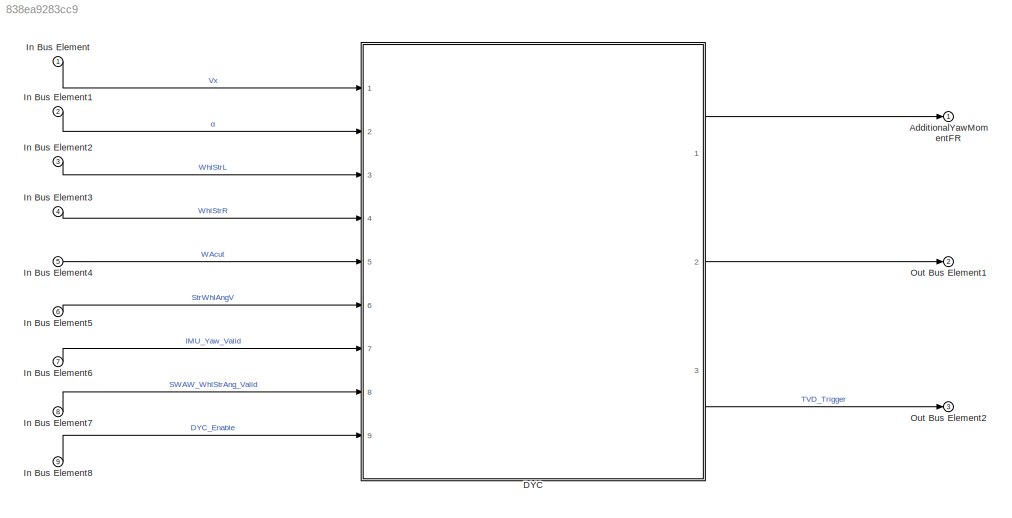
MODEL slx_838ea9283cc9
KIND model
CONFIG AbsTol = auto
CONFIG EnableMultiTasking = off
CONFIG FixedStep = auto
CONFIG MaxStep = auto
CONFIG MinStep = auto
CONFIG RelTol = 1e-3
CONFIG SampleTimeConstraint = Unconstrained
CONFIG Solver = VariableStepAuto
CONFIG SolverName = VariableStepAuto
CONFIG StartTime = 0.0
CONFIG StopTime = 10.0
BLOCK [Outport] AdditionalYawMomentFR
  IconDisplay = Port number
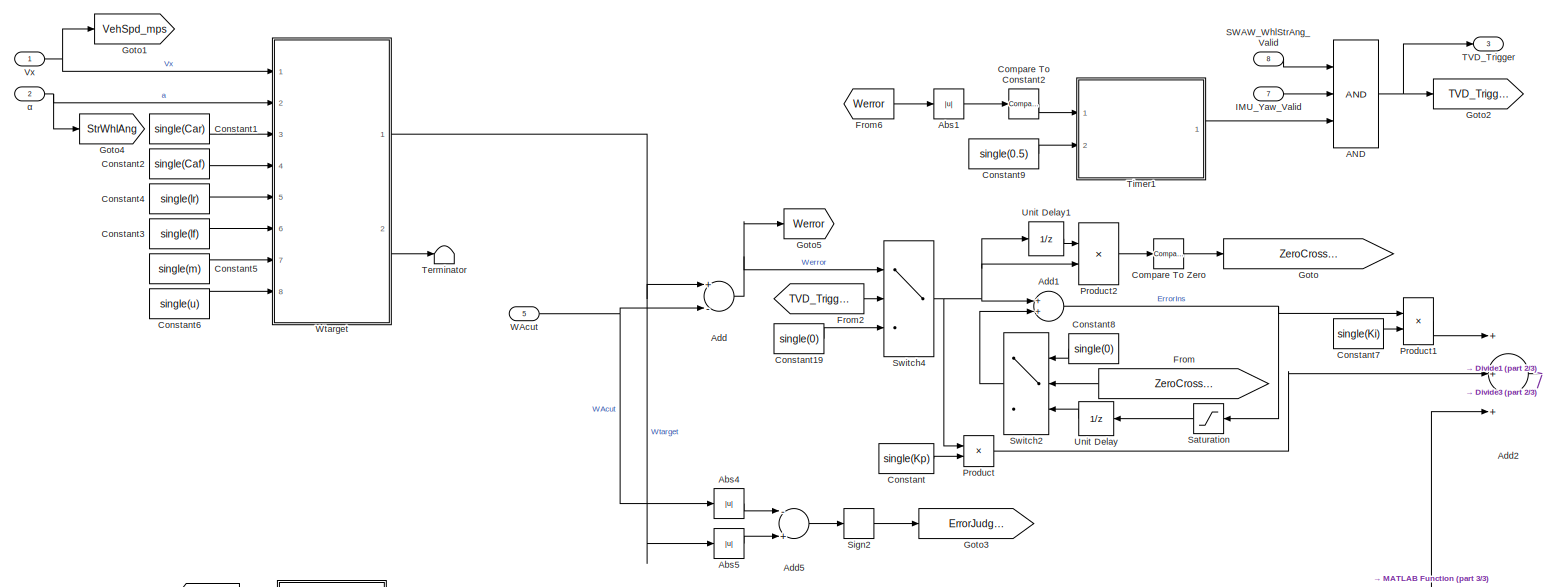
[diagram: DYC - part 1/3, middle left region]
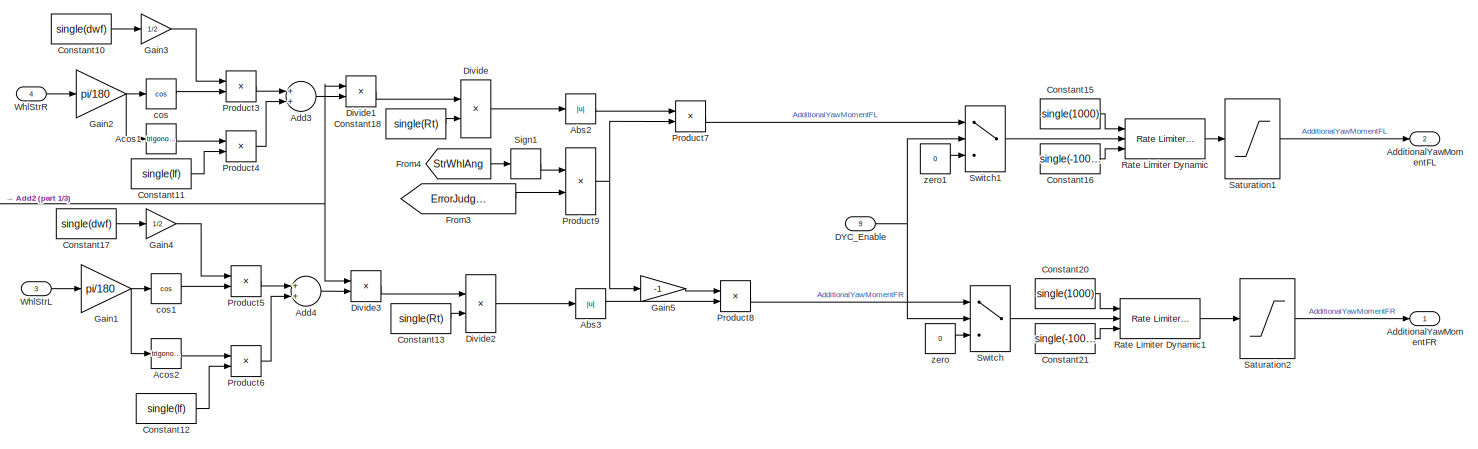
[diagram: DYC - part 2/3, middle right region]
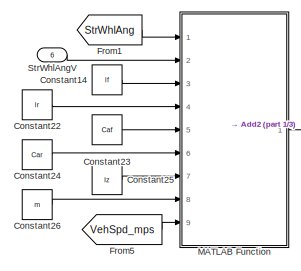
[diagram: DYC - part 3/3, bottom left region]
BLOCK [SubSystem] DYC
  Ports = [9, 3]
  RequestExecContextInheritance = off
BLOCK [Logic] DYC/AND
  AllPortsSameDT = off
  Inputs = 3
  OutDataTypeStr = boolean
  Ports = [3, 1]
BLOCK [Abs] DYC/Abs1
  SaturateOnIntegerOverflow = off
BLOCK [Abs] DYC/Abs2
  SaturateOnIntegerOverflow = off
BLOCK [Abs] DYC/Abs3
  SaturateOnIntegerOverflow = off
BLOCK [Abs] DYC/Abs4
  SaturateOnIntegerOverflow = off
BLOCK [Abs] DYC/Abs5
  SaturateOnIntegerOverflow = off
BLOCK [Trigonometry] DYC/Acos1
  Ports = [1, 1]
BLOCK [Trigonometry] DYC/Acos2
  Ports = [1, 1]
BLOCK [Sum] DYC/Add
  InputSameDT = off
  Inputs = +-
  OutDataTypeStr = Inherit: Inherit via internal rule
  Ports = [2, 1]
  SaturateOnIntegerOverflow = off
BLOCK [Sum] DYC/Add1
  InputSameDT = off
  OutDataTypeStr = Inherit: Inherit via internal rule
  Ports = [2, 1]
  SaturateOnIntegerOverflow = off
BLOCK [Sum] DYC/Add2
  InputSameDT = off
  Inputs = +++
  OutDataTypeStr = Inherit: Inherit via internal rule
  Ports = [3, 1]
  SaturateOnIntegerOverflow = off
BLOCK [Sum] DYC/Add3
  InputSameDT = off
  OutDataTypeStr = Inherit: Inherit via internal rule
  Ports = [2, 1]
  SaturateOnIntegerOverflow = off
BLOCK [Sum] DYC/Add4
  InputSameDT = off
  OutDataTypeStr = Inherit: Inherit via internal rule
  Ports = [2, 1]
  SaturateOnIntegerOverflow = off
BLOCK [Sum] DYC/Add5
  InputSameDT = off
  Inputs = -+
  OutDataTypeStr = Inherit: Inherit via internal rule
  Ports = [2, 1]
  SaturateOnIntegerOverflow = off
BLOCK [Outport] DYC/AdditionalYawMomentFL
  IconDisplay = Port number
  Port = 2
  VectorParamsAs1DForOutWhenUnconnected = off
BLOCK [Outport] DYC/AdditionalYawMomentFR
  IconDisplay = Port number
  VectorParamsAs1DForOutWhenUnconnected = off
BLOCK [Reference] DYC/Compare To Constant2  REF=simulink/Logic and Bit
Operations/Compare
To Constant
  Ports = [1, 1]
  SourceBlock = simulink/Logic and Bit\nOperations/Compare\nTo Constant
  SourceProductBaseCode = SL
  SourceProductName = Simulink
  SourceType = Compare To Constant
BLOCK [Reference] DYC/Compare To Zero  REF=simulink/Logic and Bit
Operations/Compare
To Zero
  Ports = [1, 1]
  SourceBlock = simulink/Logic and Bit\nOperations/Compare\nTo Zero
  SourceProductBaseCode = SL
  SourceProductName = Simulink
  SourceType = Compare To Zero
BLOCK [Constant] DYC/Constant
  Value = single(Kp)
BLOCK [Constant] DYC/Constant1
  Value = single(Car)
BLOCK [Constant] DYC/Constant10
  Value = single(dwf)
BLOCK [Constant] DYC/Constant11
  Value = single(lf)
BLOCK [Constant] DYC/Constant12
  Value = single(lf)
BLOCK [Constant] DYC/Constant13
  Value = single(Rt)
BLOCK [Constant] DYC/Constant14
  Value = lf
BLOCK [Constant] DYC/Constant15
  Value = single(1000)
BLOCK [Constant] DYC/Constant16
  Value = single(-1000)
BLOCK [Constant] DYC/Constant17
  Value = single(dwf)
BLOCK [Constant] DYC/Constant18
  Value = single(Rt)
BLOCK [Constant] DYC/Constant19
  Value = single(0)
BLOCK [Constant] DYC/Constant2
  Value = single(Caf)
BLOCK [Constant] DYC/Constant20
  Value = single(1000)
BLOCK [Constant] DYC/Constant21
  Value = single(-1000)
BLOCK [Constant] DYC/Constant22
  Value = lr
BLOCK [Constant] DYC/Constant23
  Value = Caf
BLOCK [Constant] DYC/Constant24
  Value = Car
BLOCK [Constant] DYC/Constant25
  Value = Iz
BLOCK [Constant] DYC/Constant26
  Value = m
BLOCK [Constant] DYC/Constant3
  Value = single(lf)
BLOCK [Constant] DYC/Constant4
  Value = single(lr)
BLOCK [Constant] DYC/Constant5
  Value = single(m)
BLOCK [Constant] DYC/Constant6
  Value = single(u)
BLOCK [Constant] DYC/Constant7
  Value = single(Ki)
BLOCK [Constant] DYC/Constant8
  Value = single(0)
BLOCK [Constant] DYC/Constant9
  Value = single(0.5)
BLOCK [Inport] DYC/DYC_Enable 
  IconDisplay = Port number
  Port = 9
BLOCK [Product] DYC/Divide
  InputSameDT = off
  Inputs = **
  OutDataTypeStr = Inherit: Inherit via internal rule
  Ports = [2, 1]
  RndMeth = Floor
  SaturateOnIntegerOverflow = off
BLOCK [Product] DYC/Divide1
  InputSameDT = off
  Inputs = */
  OutDataTypeStr = Inherit: Inherit via internal rule
  Ports = [2, 1]
  RndMeth = Floor
  SaturateOnIntegerOverflow = off
BLOCK [Product] DYC/Divide2
  InputSameDT = off
  Inputs = **
  OutDataTypeStr = Inherit: Inherit via internal rule
  Ports = [2, 1]
  RndMeth = Floor
  SaturateOnIntegerOverflow = off
BLOCK [Product] DYC/Divide3
  InputSameDT = off
  Inputs = */
  OutDataTypeStr = Inherit: Inherit via internal rule
  Ports = [2, 1]
  RndMeth = Floor
  SaturateOnIntegerOverflow = off
BLOCK [From] DYC/From
  GotoTag = ZeroCrossingDetection
BLOCK [From] DYC/From1
  GotoTag = StrWhlAng
BLOCK [From] DYC/From2
  GotoTag = TVD_Trigger
BLOCK [From] DYC/From3
  GotoTag = ErrorJudgment
BLOCK [From] DYC/From4
  GotoTag = StrWhlAng
BLOCK [From] DYC/From5
  GotoTag = VehSpd_mps
BLOCK [From] DYC/From6
  GotoTag = Werror
BLOCK [Gain] DYC/Gain1
  Gain = pi/180
  OutDataTypeStr = Inherit: Inherit via internal rule
  ParamDataTypeStr = Inherit: Inherit via internal rule
  SaturateOnIntegerOverflow = off
BLOCK [Gain] DYC/Gain2
  Gain = pi/180
  OutDataTypeStr = Inherit: Inherit via internal rule
  ParamDataTypeStr = Inherit: Inherit via internal rule
  SaturateOnIntegerOverflow = off
BLOCK [Gain] DYC/Gain3
  Gain = 1/2
  OutDataTypeStr = Inherit: Inherit via internal rule
  ParamDataTypeStr = Inherit: Inherit via internal rule
  SaturateOnIntegerOverflow = off
BLOCK [Gain] DYC/Gain4
  Gain = 1/2
  OutDataTypeStr = Inherit: Inherit via internal rule
  ParamDataTypeStr = Inherit: Inherit via internal rule
  SaturateOnIntegerOverflow = off
BLOCK [Gain] DYC/Gain5
  Gain = -1
  OutDataTypeStr = Inherit: Inherit via internal rule
  ParamDataTypeStr = Inherit: Inherit via internal rule
  SaturateOnIntegerOverflow = off
BLOCK [Goto] DYC/Goto
  GotoTag = ZeroCrossingDetection
BLOCK [Goto] DYC/Goto1
  GotoTag = VehSpd_mps
BLOCK [Goto] DYC/Goto2
  GotoTag = TVD_Trigger
BLOCK [Goto] DYC/Goto3
  GotoTag = ErrorJudgment
BLOCK [Goto] DYC/Goto4
  GotoTag = StrWhlAng
BLOCK [Goto] DYC/Goto5
  GotoTag = Werror
BLOCK [Inport] DYC/IMU_Yaw_Valid
  IconDisplay = Port number
  Port = 7
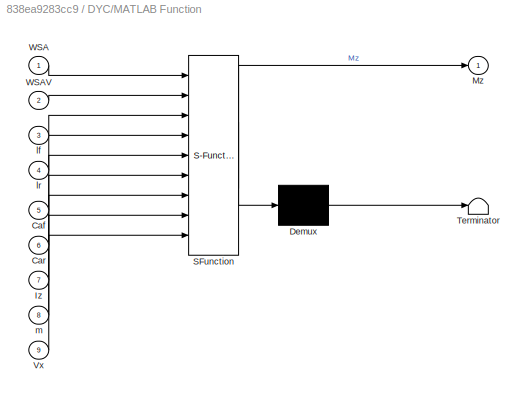
BLOCK [SubSystem] DYC/MATLAB Function
  ErrorFcn = Stateflow.Translate.translate
  PermitHierarchicalResolution = ExplicitOnly
  Ports = [9, 1]
  RequestExecContextInheritance = off
  SFBlockType = MATLAB Function
  TreatAsAtomicUnit = on
BLOCK [Demux] DYC/MATLAB Function/ Demux 
  Outputs = 1
  Ports = [1, 1]
BLOCK [S-Function] DYC/MATLAB Function/ SFunction 
  EnableBusSupport = on
  FunctionName = sf_sfun
  PortCounts = [9 2]
  Ports = [9, 2]
  SFcnIsStateOwnerBlock = off
  SFunctionDeploymentMode = off
  Tag = Stateflow S-Function 13
BLOCK [Terminator] DYC/MATLAB Function/ Terminator 
BLOCK [Inport] DYC/MATLAB Function/Caf
  IconDisplay = Port number
  Port = 5
BLOCK [Inport] DYC/MATLAB Function/Car
  IconDisplay = Port number
  Port = 6
BLOCK [Inport] DYC/MATLAB Function/Iz
  IconDisplay = Port number
  Port = 7
BLOCK [Outport] DYC/MATLAB Function/Mz
  IconDisplay = Port number
  VectorParamsAs1DForOutWhenUnconnected = off
BLOCK [Inport] DYC/MATLAB Function/Vx
  IconDisplay = Port number
  Port = 9
BLOCK [Inport] DYC/MATLAB Function/WSA
  IconDisplay = Port number
BLOCK [Inport] DYC/MATLAB Function/WSAV
  IconDisplay = Port number
  Port = 2
BLOCK [Inport] DYC/MATLAB Function/lf
  IconDisplay = Port number
  Port = 3
BLOCK [Inport] DYC/MATLAB Function/lr
  IconDisplay = Port number
  Port = 4
BLOCK [Inport] DYC/MATLAB Function/m
  IconDisplay = Port number
  Port = 8
BLOCK [Product] DYC/Product
  InputSameDT = off
  OutDataTypeStr = Inherit: Inherit via internal rule
  Ports = [2, 1]
  RndMeth = Floor
  SaturateOnIntegerOverflow = off
BLOCK [Product] DYC/Product1
  InputSameDT = off
  OutDataTypeStr = Inherit: Inherit via internal rule
  Ports = [2, 1]
  RndMeth = Floor
  SaturateOnIntegerOverflow = off
BLOCK [Product] DYC/Product2
  InputSameDT = off
  OutDataTypeStr = Inherit: Inherit via internal rule
  Ports = [2, 1]
  RndMeth = Floor
  SaturateOnIntegerOverflow = off
BLOCK [Product] DYC/Product3
  InputSameDT = off
  OutDataTypeStr = Inherit: Inherit via internal rule
  Ports = [2, 1]
  RndMeth = Floor
  SaturateOnIntegerOverflow = off
BLOCK [Product] DYC/Product4
  InputSameDT = off
  OutDataTypeStr = Inherit: Inherit via internal rule
  Ports = [2, 1]
  RndMeth = Floor
  SaturateOnIntegerOverflow = off
BLOCK [Product] DYC/Product5
  InputSameDT = off
  OutDataTypeStr = Inherit: Inherit via internal rule
  Ports = [2, 1]
  RndMeth = Floor
  SaturateOnIntegerOverflow = off
BLOCK [Product] DYC/Product6
  InputSameDT = off
  OutDataTypeStr = Inherit: Inherit via internal rule
  Ports = [2, 1]
  RndMeth = Floor
  SaturateOnIntegerOverflow = off
BLOCK [Product] DYC/Product7
  InputSameDT = off
  OutDataTypeStr = Inherit: Inherit via internal rule
  Ports = [2, 1]
  RndMeth = Floor
  SaturateOnIntegerOverflow = off
BLOCK [Product] DYC/Product8
  InputSameDT = off
  OutDataTypeStr = Inherit: Inherit via internal rule
  Ports = [2, 1]
  RndMeth = Floor
  SaturateOnIntegerOverflow = off
BLOCK [Product] DYC/Product9
  InputSameDT = off
  OutDataTypeStr = Inherit: Inherit via internal rule
  Ports = [2, 1]
  RndMeth = Floor
  SaturateOnIntegerOverflow = off
BLOCK [Reference] DYC/Rate Limiter Dynamic  REF=simulink/Discontinuities/Rate Limiter
Dynamic
  Ports = [3, 1]
  SourceBlock = simulink/Discontinuities/Rate Limiter\nDynamic
  SourceProductBaseCode = SL
  SourceProductName = Simulink
  SourceType = Rate Limiter Dynamic
BLOCK [Reference] DYC/Rate Limiter Dynamic1  REF=simulink/Discontinuities/Rate Limiter
Dynamic
  Ports = [3, 1]
  SourceBlock = simulink/Discontinuities/Rate Limiter\nDynamic
  SourceProductBaseCode = SL
  SourceProductName = Simulink
  SourceType = Rate Limiter Dynamic
BLOCK [Inport] DYC/SWAW_WhlStrAng_Valid
  IconDisplay = Port number
  Port = 8
BLOCK [Saturate] DYC/Saturation
  InputPortMap = u0
  LowerLimit = -10
  Ports = [1, 1]
  UpperLimit = 10
BLOCK [Saturate] DYC/Saturation1
  InputPortMap = u0
  LowerLimit = -20
  Ports = [1, 1]
  UpperLimit = 20
BLOCK [Saturate] DYC/Saturation2
  InputPortMap = u0
  LowerLimit = -20
  Ports = [1, 1]
  UpperLimit = 20
BLOCK [Signum] DYC/Sign1
BLOCK [Signum] DYC/Sign2
BLOCK [Inport] DYC/StrWhlAngV
  IconDisplay = Port number
  Port = 6
BLOCK [Switch] DYC/Switch
  Criteria = u2 ~= 0
  InputSameDT = off
  SaturateOnIntegerOverflow = off
BLOCK [Switch] DYC/Switch1
  Criteria = u2 ~= 0
  InputSameDT = off
  SaturateOnIntegerOverflow = off
BLOCK [Switch] DYC/Switch2
  Criteria = u2 ~= 0
  InputSameDT = off
  SaturateOnIntegerOverflow = off
BLOCK [Switch] DYC/Switch4
  Criteria = u2 ~= 0
  InputSameDT = off
  SaturateOnIntegerOverflow = off
BLOCK [Outport] DYC/TVD_Trigger
  IconDisplay = Port number
  Port = 3
  VectorParamsAs1DForOutWhenUnconnected = off
BLOCK [Terminator] DYC/Terminator
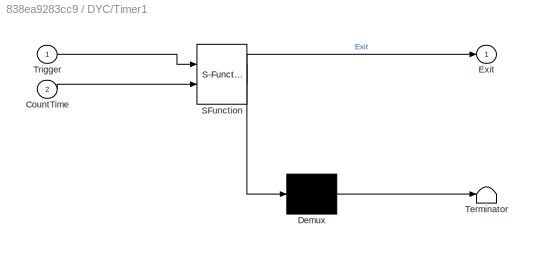
BLOCK [SubSystem] DYC/Timer1
  ErrorFcn = Stateflow.Translate.translate
  PermitHierarchicalResolution = ExplicitOnly
  Ports = [2, 1]
  RequestExecContextInheritance = off
  SFBlockType = Chart
  TreatAsAtomicUnit = on
BLOCK [Demux] DYC/Timer1/ Demux 
  Outputs = 1
  Ports = [1, 1]
BLOCK [S-Function] DYC/Timer1/ SFunction 
  EnableBusSupport = on
  FunctionName = sf_sfun
  Parameters = 0
  PortCounts = [2 2]
  Ports = [2, 2]
  SFcnIsStateOwnerBlock = off
  SFunctionDeploymentMode = off
  Tag = Stateflow S-Function 4
BLOCK [Terminator] DYC/Timer1/ Terminator 
BLOCK [Inport] DYC/Timer1/CountTime
  IconDisplay = Port number
  Port = 2
BLOCK [Outport] DYC/Timer1/Exit
  IconDisplay = Port number
BLOCK [Inport] DYC/Timer1/Trigger
  IconDisplay = Port number
BLOCK [UnitDelay] DYC/Unit Delay
  HasFrameUpgradeWarning = on
  SampleTime = -1
BLOCK [UnitDelay] DYC/Unit Delay1
  HasFrameUpgradeWarning = on
  SampleTime = -1
BLOCK [Inport] DYC/Vx
  IconDisplay = Port number
BLOCK [Inport] DYC/WAcut
  IconDisplay = Port number
  Port = 5
BLOCK [Inport] DYC/WhlStrL
  IconDisplay = Port number
  Port = 3
BLOCK [Inport] DYC/WhlStrR
  IconDisplay = Port number
  Port = 4
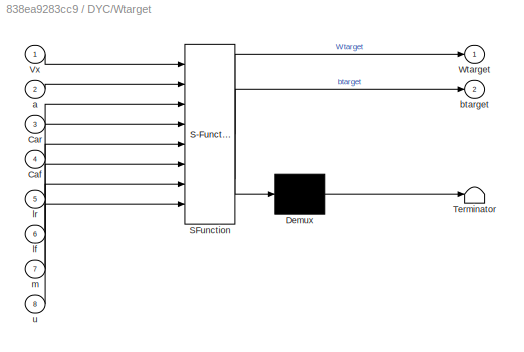
BLOCK [SubSystem] DYC/Wtarget
  ErrorFcn = Stateflow.Translate.translate
  PermitHierarchicalResolution = ExplicitOnly
  Ports = [8, 2]
  RequestExecContextInheritance = off
  SFBlockType = MATLAB Function
  TreatAsAtomicUnit = on
BLOCK [Demux] DYC/Wtarget/ Demux 
  Outputs = 1
  Ports = [1, 1]
BLOCK [S-Function] DYC/Wtarget/ SFunction 
  EnableBusSupport = on
  FunctionName = sf_sfun
  PortCounts = [8 3]
  Ports = [8, 3]
  SFcnIsStateOwnerBlock = off
  SFunctionDeploymentMode = off
  Tag = Stateflow S-Function 2
BLOCK [Terminator] DYC/Wtarget/ Terminator 
BLOCK [Inport] DYC/Wtarget/Caf
  IconDisplay = Port number
  Port = 4
BLOCK [Inport] DYC/Wtarget/Car
  IconDisplay = Port number
  Port = 3
BLOCK [Inport] DYC/Wtarget/Vx
  IconDisplay = Port number
BLOCK [Outport] DYC/Wtarget/Wtarget
  IconDisplay = Port number
BLOCK [Inport] DYC/Wtarget/a
  IconDisplay = Port number
  Port = 2
BLOCK [Outport] DYC/Wtarget/btarget
  IconDisplay = Port number
  Port = 2
BLOCK [Inport] DYC/Wtarget/lf
  IconDisplay = Port number
  Port = 6
BLOCK [Inport] DYC/Wtarget/lr
  IconDisplay = Port number
  Port = 5
BLOCK [Inport] DYC/Wtarget/m
  IconDisplay = Port number
  Port = 7
BLOCK [Inport] DYC/Wtarget/u
  IconDisplay = Port number
  Port = 8
BLOCK [Trigonometry] DYC/cos
  Operator = cos
  Ports = [1, 1]
BLOCK [Trigonometry] DYC/cos1
  Operator = cos
  Ports = [1, 1]
BLOCK [Constant] DYC/zero
  Value = 0
BLOCK [Constant] DYC/zero1
  Value = 0
BLOCK [Inport] DYC/α
  IconDisplay = Port number
  Port = 2
BLOCK [Inport] In Bus Element
  IconDisplay = Port number
BLOCK [Inport] In Bus Element1
  IconDisplay = Port number
  Port = 2
BLOCK [Inport] In Bus Element2
  IconDisplay = Port number
  Port = 3
BLOCK [Inport] In Bus Element3
  IconDisplay = Port number
  Port = 4
BLOCK [Inport] In Bus Element4
  IconDisplay = Port number
  Port = 5
BLOCK [Inport] In Bus Element5
  IconDisplay = Port number
  Port = 6
BLOCK [Inport] In Bus Element6
  IconDisplay = Port number
  Port = 7
BLOCK [Inport] In Bus Element7
  IconDisplay = Port number
  Port = 8
BLOCK [Inport] In Bus Element8
  IconDisplay = Port number
  Port = 9
BLOCK [Outport] Out Bus Element1
  IconDisplay = Port number
  Port = 2
BLOCK [Outport] Out Bus Element2
  IconDisplay = Port number
  Port = 3
NET DYC/AND:1 -> DYC/Goto2:1, DYC/TVD_Trigger:1
LINE DYC/Abs1:1 -> DYC/Compare To Constant2:1
LINE DYC/Abs2:1 -> DYC/Product7:1
LINE DYC/Abs3:1 -> DYC/Product8:2
LINE DYC/Abs4:1 -> DYC/Add5:1
LINE DYC/Abs5:1 -> DYC/Add5:2
LINE DYC/Acos1:1 -> DYC/Product4:1
LINE DYC/Acos2:1 -> DYC/Product6:1
NET DYC/Add1:1 -> DYC/Product1:1, DYC/Saturation:1
NET DYC/Add2:1 -> DYC/Divide1:1, DYC/Divide3:1
LINE DYC/Add3:1 -> DYC/Divide1:2
LINE DYC/Add4:1 -> DYC/Divide3:2
LINE DYC/Add5:1 -> DYC/Sign2:1
NET DYC/Add:1 -> DYC/Goto5:1, DYC/Switch4:1
LINE DYC/Compare To Constant2:1 -> DYC/Timer1:1
LINE DYC/Compare To Zero:1 -> DYC/Goto:1
LINE DYC/Constant10:1 -> DYC/Gain3:1
LINE DYC/Constant11:1 -> DYC/Product4:2
LINE DYC/Constant12:1 -> DYC/Product6:2
LINE DYC/Constant13:1 -> DYC/Divide2:2
LINE DYC/Constant14:1 -> DYC/MATLAB Function:3
LINE DYC/Constant15:1 -> DYC/Rate Limiter Dynamic:1
LINE DYC/Constant16:1 -> DYC/Rate Limiter Dynamic:3
LINE DYC/Constant17:1 -> DYC/Gain4:1
LINE DYC/Constant18:1 -> DYC/Divide:2
LINE DYC/Constant19:1 -> DYC/Switch4:3
LINE DYC/Constant1:1 -> DYC/Wtarget:3
LINE DYC/Constant20:1 -> DYC/Rate Limiter Dynamic1:1
LINE DYC/Constant21:1 -> DYC/Rate Limiter Dynamic1:3
LINE DYC/Constant22:1 -> DYC/MATLAB Function:4
LINE DYC/Constant23:1 -> DYC/MATLAB Function:5
LINE DYC/Constant24:1 -> DYC/MATLAB Function:6
LINE DYC/Constant25:1 -> DYC/MATLAB Function:7
LINE DYC/Constant26:1 -> DYC/MATLAB Function:8
LINE DYC/Constant2:1 -> DYC/Wtarget:4
LINE DYC/Constant3:1 -> DYC/Wtarget:6
LINE DYC/Constant4:1 -> DYC/Wtarget:5
LINE DYC/Constant5:1 -> DYC/Wtarget:7
LINE DYC/Constant6:1 -> DYC/Wtarget:8
LINE DYC/Constant7:1 -> DYC/Product1:2
LINE DYC/Constant8:1 -> DYC/Switch2:1
LINE DYC/Constant9:1 -> DYC/Timer1:2
LINE DYC/Constant:1 -> DYC/Product:2
NET DYC/DYC_Enable :1 -> DYC/Switch1:2, DYC/Switch:2
LINE DYC/Divide1:1 -> DYC/Divide:1
LINE DYC/Divide2:1 -> DYC/Abs3:1
LINE DYC/Divide3:1 -> DYC/Divide2:1
LINE DYC/Divide:1 -> DYC/Abs2:1
LINE DYC/From1:1 -> DYC/MATLAB Function:1
LINE DYC/From2:1 -> DYC/Switch4:2
LINE DYC/From3:1 -> DYC/Product9:2
LINE DYC/From4:1 -> DYC/Sign1:1
LINE DYC/From5:1 -> DYC/MATLAB Function:9
LINE DYC/From6:1 -> DYC/Abs1:1
LINE DYC/From:1 -> DYC/Switch2:2
NET DYC/Gain1:1 -> DYC/Acos2:1, DYC/cos1:1
NET DYC/Gain2:1 -> DYC/Acos1:1, DYC/cos:1
LINE DYC/Gain3:1 -> DYC/Product3:1
LINE DYC/Gain4:1 -> DYC/Product5:1
LINE DYC/Gain5:1 -> DYC/Product8:1
LINE DYC/IMU_Yaw_Valid:1 -> DYC/AND:2
LINE DYC/MATLAB Function:1 -> DYC/Add2:3
LINE DYC/Product1:1 -> DYC/Add2:1
LINE DYC/Product2:1 -> DYC/Compare To Zero:1
LINE DYC/Product3:1 -> DYC/Add3:1
LINE DYC/Product4:1 -> DYC/Add3:2
LINE DYC/Product5:1 -> DYC/Add4:1
LINE DYC/Product6:1 -> DYC/Add4:2
LINE DYC/Product7:1 -> DYC/Switch1:1
LINE DYC/Product8:1 -> DYC/Switch:1
NET DYC/Product9:1 -> DYC/Gain5:1, DYC/Product7:2
LINE DYC/Product:1 -> DYC/Add2:2
LINE DYC/Rate Limiter Dynamic1:1 -> DYC/Saturation2:1
LINE DYC/Rate Limiter Dynamic:1 -> DYC/Saturation1:1
LINE DYC/SWAW_WhlStrAng_Valid:1 -> DYC/AND:1
LINE DYC/Saturation1:1 -> DYC/AdditionalYawMomentFL:1
LINE DYC/Saturation2:1 -> DYC/AdditionalYawMomentFR:1
LINE DYC/Saturation:1 -> DYC/Unit Delay:1
LINE DYC/Sign1:1 -> DYC/Product9:1
LINE DYC/Sign2:1 -> DYC/Goto3:1
LINE DYC/StrWhlAngV:1 -> DYC/MATLAB Function:2
LINE DYC/Switch1:1 -> DYC/Rate Limiter Dynamic:2
LINE DYC/Switch2:1 -> DYC/Add1:2
NET DYC/Switch4:1 -> DYC/Add1:1, DYC/Product2:2, DYC/Product:1, DYC/Unit Delay1:1
LINE DYC/Switch:1 -> DYC/Rate Limiter Dynamic1:2
LINE DYC/Timer1:1 -> DYC/AND:3
LINE DYC/Unit Delay1:1 -> DYC/Product2:1
LINE DYC/Unit Delay:1 -> DYC/Switch2:3
NET DYC/Vx:1 -> DYC/Goto1:1, DYC/Wtarget:1
NET DYC/WAcut:1 -> DYC/Abs4:1, DYC/Add:2
LINE DYC/WhlStrL:1 -> DYC/Gain1:1
LINE DYC/WhlStrR:1 -> DYC/Gain2:1
NET DYC/Wtarget:1 -> DYC/Abs5:1, DYC/Add:1
LINE DYC/Wtarget:2 -> DYC/Terminator:1
LINE DYC/cos1:1 -> DYC/Product5:2
LINE DYC/cos:1 -> DYC/Product3:2
LINE DYC/zero1:1 -> DYC/Switch1:3
LINE DYC/zero:1 -> DYC/Switch:3
NET DYC/α:1 -> DYC/Goto4:1, DYC/Wtarget:2
LINE DYC:1 -> AdditionalYawMomentFR:1
LINE DYC:2 -> Out Bus Element1:1
LINE DYC:3 -> Out Bus Element2:1
LINE In Bus Element1:1 -> DYC:2
LINE In Bus Element2:1 -> DYC:3
LINE In Bus Element3:1 -> DYC:4
LINE In Bus Element4:1 -> DYC:5
LINE In Bus Element5:1 -> DYC:6
LINE In Bus Element6:1 -> DYC:7
LINE In Bus Element7:1 -> DYC:8
LINE In Bus Element8:1 -> DYC:9
LINE In Bus Element:1 -> DYC:1
note: NET lines group one-source signal fan-out (src -> all destinations, sorted); 1:1 wires keep LINE
CHART DYC/Wtarget states=1 transitions=1
  STATE_LABEL 'eML_blk_kernel()'
  STATE_LABEL 'SCRIPT:\nfunction [Wtarget,btarget] = fcn(Vx,a,Car,Caf,lr,lf,m,u)\nWdes = Vx*a/(lf+lr+(m*Vx*Vx*(lr*Car-lf*Caf)/Caf/Car/(lr+lf)/2));\n% Wu = 0.85*u*9.8/Vx;\n% if abs(Wdes)<=Wu\nWtarget = Wdes;\n% else\n%    Wtarget = Wu*sign(Wdes);\n% end\nbdes = (lr-lf*m*Vx*Vx/Car/(lf+lr)/2)*a/(lr+lf+m*Vx*Vx*(lr*Car-lf*Caf)/Car/Caf/(lf+lr)/2);\nbu = atan(0.02*u*9.8);\nif abs(bdes)<=bu\nbtarget = bdes;\nelse\n    btarget = bu*si...<+13ch>'
CHART DYC/Timer1 states=3 transitions=6
  STATE_LABEL 'Trigger\nen:\nx = x + 0.01;\nExit=0;\n'
  STATE_LABEL 'Out\nen:\nExit=1;\nx=0;\n'
  STATE_LABEL 'InterState\nen:\nx=0;'
CHART DYC/MATLAB Function states=1 transitions=1
  STATE_LABEL 'eML_blk_kernel()'
  STATE_LABEL 'SCRIPT:\nfunction Mz = fcn(WSA,WSAV,lf,lr,Caf,Car,Iz,m,Vx)\n\nMz = (((lf*lf*Caf+lr*lr*Car)/Iz/Vx)*(-Caf/m/Vx)-((lf*Caf-lr*Car)/m/Vx/Vx-1)*(-lf*Caf/Iz))*Iz*WSA/((lf*Caf-lr*Car)/m/Vx/Vx-1)-(-Caf/m/Vx)*Iz*WSAV/((lf*Caf-lr*Car)/m/Vx/Vx-1);\n'
